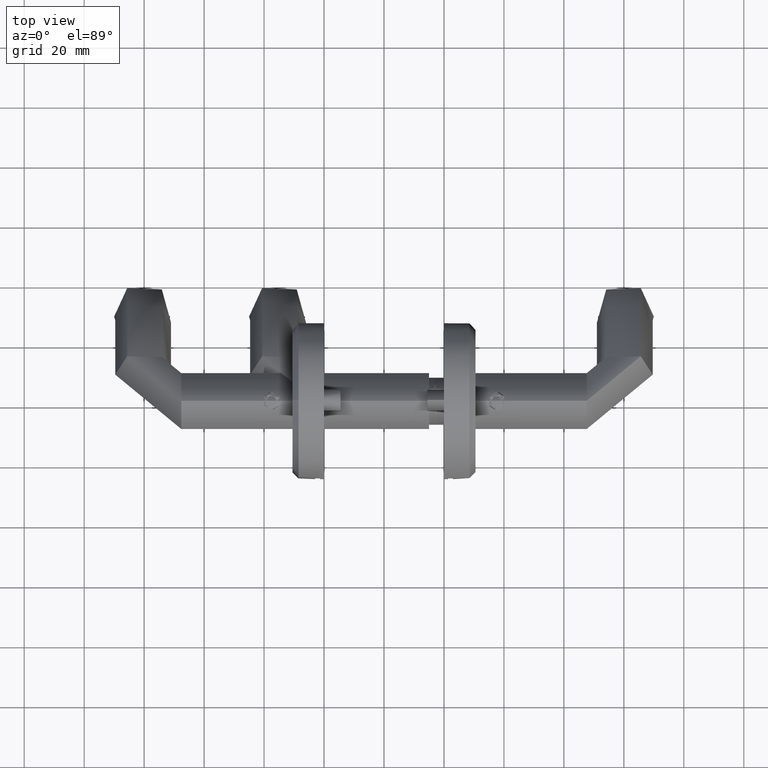
[diagram: clean part render]
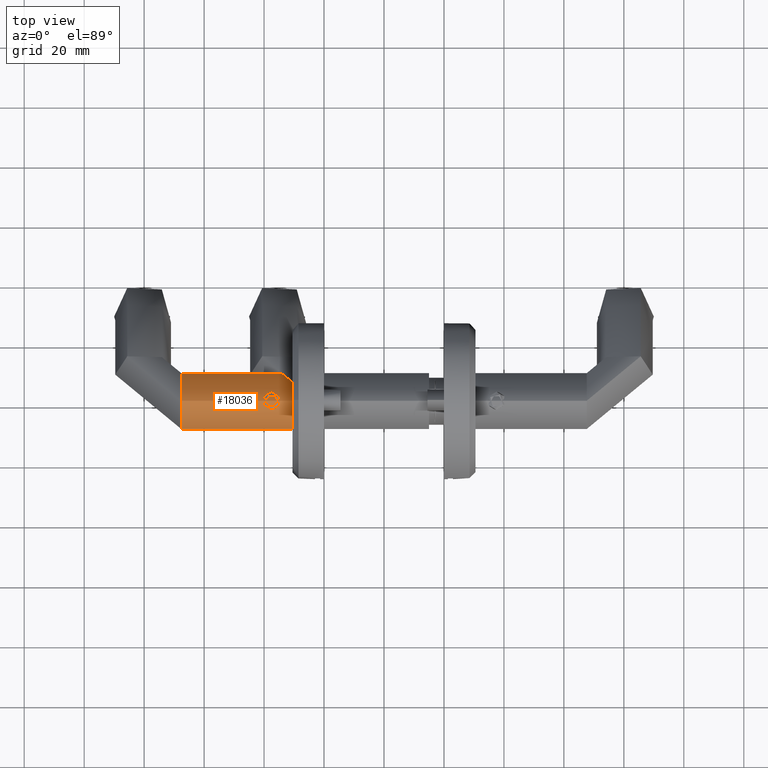
[diagram: same view with one face highlighted and labeled with its STEP entity id]
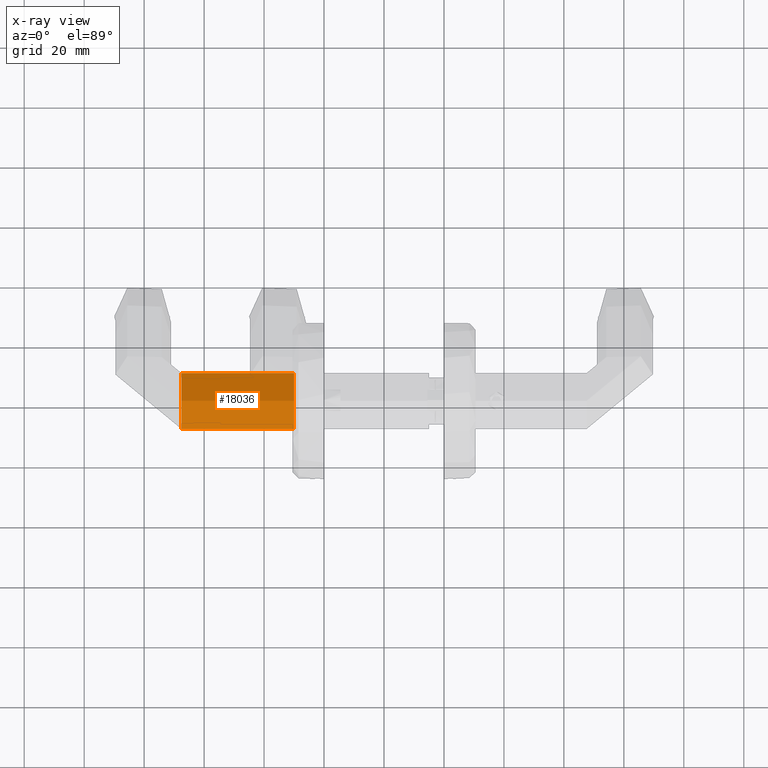
[diagram: x-ray of the same camera — body ghosted, the highlighted face saturated]
A machine part, top view. The second image highlights one B-rep face of the part: STEP entity #18036.
The next image is the same camera in x-ray: the body ghosted, the highlighted face saturated — about 0% of this face is hidden behind the body in this view.
In plain terms, the highlighted cylindrical surface (bore or boss wall) has radius 9.8 mm, axis along (1, -0, 0).
Its self-contained STEP definition (entity closure, byte-faithful):
#192 = CIRCLE ( 'NONE', #34407, 9.799999999999998900 ) ;
#372 = CIRCLE ( 'NONE', #3111, 9.799999999999998900 ) ;
#389 = CARTESIAN_POINT ( 'NONE',  ( -9.799999999999997200, -1.734723475976809100E-015, 37.62000000000002600 ) ) ;
#619 = CARTESIAN_POINT ( 'NONE',  ( -0.08299369442343772200, -1.284755754752694000, 5.013437405875524900 ) ) ;
#1814 = CARTESIAN_POINT ( 'NONE',  ( -0.3906389789736899300, 2.740375265106190100, 6.605224161148243000 ) ) ;
#2056 = CARTESIAN_POINT ( 'NONE',  ( -0.01635928692315415100, 0.5660162519090695700, 4.784810345631155900 ) ) ;
#2177 = CARTESIAN_POINT ( 'NONE',  ( -0.3496586795409333300, 2.595515547792905500, 8.728946815938055400 ) ) ;
#3012 = CARTESIAN_POINT ( 'NONE',  ( -6.897812140399388900E-005, -0.3805590716566443800, 4.731358774623282100 ) ) ;
#3111 = AXIS2_PLACEMENT_3D ( 'NONE', #389, #31972, #3270 ) ;
#3270 = DIRECTION ( 'NONE',  ( 1.000000000000000000, 0.0000000000000000000, 0.0000000000000000000 ) ) ;
#3751 = CARTESIAN_POINT ( 'NONE',  ( -0.4340130416390243800, -2.884161104360430700, 7.318411786598892000 ) ) ;
#3797 = FACE_BOUND ( 'NONE', #12312, .T. ) ;
#3880 = CARTESIAN_POINT ( 'NONE',  ( -0.2716078295963974500, -2.307259130480166400, 9.204518789570679300 ) ) ;
#4706 = ORIENTED_EDGE ( 'NONE', *, *, #8936, .F. ) ;
#4713 = CARTESIAN_POINT ( 'NONE',  ( -0.09556908775646376400, 1.365291422917502400, 5.059892389442357100 ) ) ;
#4840 = CARTESIAN_POINT ( 'NONE',  ( -0.4182749411672359000, 2.832531539183526600, 6.956191829310238700 ) ) ;
#4957 = CARTESIAN_POINT ( 'NONE',  ( -0.1326810078832695000, 1.607153852205561100, 5.199204663073095000 ) ) ;
#5080 = CARTESIAN_POINT ( 'NONE',  ( -0.02720517742662341800, 0.7534884234967550400, 4.820716758208251700 ) ) ;
#5206 = CARTESIAN_POINT ( 'NONE',  ( -0.005687839129652409600, 0.3820111784198392800, 10.25051546661125500 ) ) ;
#5606 = FACE_OUTER_BOUND ( 'NONE', #11726, .T. ) ;
#6390 = VERTEX_POINT ( 'NONE', #20257 ) ;
#6398 = CARTESIAN_POINT ( 'NONE',  ( -0.4354606581764589000, -2.888841102902963700, 7.410828847097634200 ) ) ;
#6604 = DIRECTION ( 'NONE',  ( -1.000000000000000000, 0.0000000000000000000, 0.0000000000000000000 ) ) ;
#6766 = CARTESIAN_POINT ( 'NONE',  ( -0.3288534424539765700, -2.521980209031587300, 6.101314800312283500 ) ) ;
#6891 = CARTESIAN_POINT ( 'NONE',  ( -0.06310637153082547500, -1.110361413178788700, 4.943845459730400900 ) ) ;
#7003 = EDGE_LOOP ( 'NONE', ( #28247 ) ) ;
#7712 = CARTESIAN_POINT ( 'NONE',  ( -0.3700320209831468000, 2.667527678341279800, 6.437236899734778600 ) ) ;
#7836 = FACE_OUTER_BOUND ( 'NONE', #7003, .T. ) ;
#7839 = CARTESIAN_POINT ( 'NONE',  ( -0.4354537862329047600, 2.888818826240517000, 7.409396572554148200 ) ) ;
#7971 = CARTESIAN_POINT ( 'NONE',  ( -0.3252775338928902100, 2.506290682336496500, 8.888870862113197500 ) ) ;
#8936 = EDGE_CURVE ( 'NONE', #6390, #6390, #372, .T. ) ;
#9281 = CARTESIAN_POINT ( 'NONE',  ( -0.3288964126751554600, -2.522058451194332000, 8.897482933850984200 ) ) ;
#9333 = CARTESIAN_POINT ( 'NONE',  ( 0.0000000000000000000, -3.851859888774471700E-031, 1.811914891679511500E-030 ) ) ;
#9401 = CARTESIAN_POINT ( 'NONE',  ( -0.3701412483092820200, -2.667913777310275200, 6.438127643400209300 ) ) ;
#9516 = CARTESIAN_POINT ( 'NONE',  ( -0.4295886053681828900, -2.870001744910787100, 7.864231248662980200 ) ) ;
#10452 = CARTESIAN_POINT ( 'NONE',  ( 0.0000000000000000000, 7.266389659639852600E-016, 10.26885880047777300 ) ) ;
#10580 = CARTESIAN_POINT ( 'NONE',  ( -0.1196767919207034500, 1.528931158230135000, 5.149005723561717000 ) ) ;
#10984 = DIRECTION ( 'NONE',  ( 1.972152263052526900E-031, 3.889170968374258800E-034, 1.000000000000000000 ) ) ;
#11726 = EDGE_LOOP ( 'NONE', ( #4706 ) ) ;
#12029 = CARTESIAN_POINT ( 'NONE',  ( -0.3907851512369348000, -2.740880561449619400, 6.606534064944172600 ) ) ;
#12151 = CARTESIAN_POINT ( 'NONE',  ( -0.3902322306081675900, -2.738962581778774800, 8.398396888467486200 ) ) ;
#12162 = AXIS2_PLACEMENT_3D ( 'NONE', #29409, #20775, #6604 ) ;
#12284 = CARTESIAN_POINT ( 'NONE',  ( -0.02300272790867947900, -0.7581509683962325300, 10.19646775247131700 ) ) ;
#12312 = EDGE_LOOP ( 'NONE', ( #24211 ) ) ;
#12416 = CARTESIAN_POINT ( 'NONE',  ( -0.4070522529736622100, -2.795362649473159200, 8.221942249555905100 ) ) ;
#12540 = CARTESIAN_POINT ( 'NONE',  ( -0.1590607073925400000, -1.765585746114683300, 5.301093781196164500 ) ) ;
#13362 = CARTESIAN_POINT ( 'NONE',  ( -0.4340157285619795600, 2.884169698778210400, 7.318730521170619100 ) ) ;
#13478 = CARTESIAN_POINT ( 'NONE',  ( -0.1328079027327934400, 1.607916961330550600, 9.800305463808472300 ) ) ;
#13539 = VERTEX_POINT ( 'NONE', #9333 ) ;
#13729 = CARTESIAN_POINT ( 'NONE',  ( -0.4354170493484896300, 2.888699736959077200, 7.863310219945206300 ) ) ;
#14997 = EDGE_CURVE ( 'NONE', #36379, #36379, #17416, .T. ) ;
#15059 = CARTESIAN_POINT ( 'NONE',  ( -0.1323713766238007700, -1.605290254277161000, 9.801990246998032700 ) ) ;
#15189 = CARTESIAN_POINT ( 'NONE',  ( -0.2154620635836917400, -2.043681126153644700, 5.543074919613039800 ) ) ;
#15434 = CARTESIAN_POINT ( 'NONE',  ( -0.08287199686703046500, -1.283955025719124800, 9.986999347365598500 ) ) ;
#16131 = CARTESIAN_POINT ( 'NONE',  ( -0.2719463490837928900, 2.308787249372621800, 5.797056132452504500 ) ) ;
#16384 = CARTESIAN_POINT ( 'NONE',  ( -0.1588885663860762900, 1.764720323459317200, 9.699615155712530500 ) ) ;
#16508 = CARTESIAN_POINT ( 'NONE',  ( -0.2719238998996207400, 2.295130633497247900, 9.191259280137327200 ) ) ;
#16630 = CARTESIAN_POINT ( 'NONE',  ( -0.3288181050020606000, 2.521832504811458300, 6.101262376907850000 ) ) ;
#17416 = B_SPLINE_CURVE_WITH_KNOTS ( 'NONE', 3,
 ( #10452, #22363, #5206, #30886, #25236, #33262, #33383, #22126, #19379, #13478, #16384, #36378, #36260, #33630, #16508, #36629, #7971, #2177, #19516, #30517, #13729, #27636, #7839, #13362, #19138, #30764, #33753, #4840, #24859, #1814, #7712, #16630, #16131, #27755, #28014, #36139, #4957, #10580, #27872, #4713, #22253, #24739, #30637, #19256, #5080, #2056, #25106, #26183, #25933, #3012, #26678, #6891, #619, #32456, #24040, #12540, #35315, #15189, #29455, #6766, #9401, #12029, #21187, #29562, #26425, #20698, #23554, #3751, #6398, #34948, #32197, #9516, #18191, #12416, #12151, #26804, #9281, #3880, #23913, #29681, #20827, #15059, #35068, #15434, #29331, #12284, #17934, #35433 ),
 .UNSPECIFIED., .T., .F.,
 ( 4, 3, 3, 3, 3, 3, 3, 3, 3, 3, 3, 3, 3, 3, 3, 3, 3, 3, 3, 3, 3, 3, 3, 3, 3, 3, 3, 3, 3, 4 ),
 ( 0.0000000000000000000, 0.03448275862068965500, 0.06896551724137930900, 0.1034482758620689600, 0.1379310344827586200, 0.1724137931034482900, 0.2068965517241379300, 0.2413793103448276000, 0.2758620689655172400, 0.3103448275862069100, 0.3448275862068965700, 0.3793103448275861900, 0.4137931034482758600, 0.4482758620689655200, 0.4827586206896551900, 0.5172413793103448600, 0.5517241379310344800, 0.5862068965517240900, 0.6206896551724138100, 0.6551724137931034300, 0.6896551724137931500, 0.7241379310344827600, 0.7586206896551723800, 0.7931034482758621000, 0.8275862068965517100, 0.8620689655172413300, 0.8965517241379310500, 0.9310344827586206600, 0.9655172413793103900, 1.000000000000000000 ),
 .UNSPECIFIED. ) ;
#17934 = CARTESIAN_POINT ( 'NONE',  ( 4.649162708633346500E-017, -0.3796331878165531400, 10.26885815542220800 ) ) ;
#18036 = ADVANCED_FACE ( 'NONE', ( #3797, #5606, #7836 ), #21296, .T. ) ;
#18191 = CARTESIAN_POINT ( 'NONE',  ( -0.4183204291709225500, -2.832682197191973100, 8.043086749109441800 ) ) ;
#19138 = CARTESIAN_POINT ( 'NONE',  ( -0.4311381815473910300, 2.874791857985704800, 7.227702611852203400 ) ) ;
#19256 = CARTESIAN_POINT ( 'NONE',  ( -0.04295689141208925600, 0.9332789638739097400, 4.873354249472422200 ) ) ;
#19379 = CARTESIAN_POINT ( 'NONE',  ( -0.1067272390795106100, 1.451113599201783800, 9.900995771904415900 ) ) ;
#19516 = CARTESIAN_POINT ( 'NONE',  ( -0.3701249467926506800, 2.667856158209755100, 8.562005341469479400 ) ) ;
#20257 = CARTESIAN_POINT ( 'NONE',  ( 1.734723475976807100E-015, -1.734723475976809100E-015, 37.62000000000002600 ) ) ;
#20698 = CARTESIAN_POINT ( 'NONE',  ( -0.4282354775607659100, -2.865331868395486900, 7.136114027252428800 ) ) ;
#20775 = DIRECTION ( 'NONE',  ( -4.611173514026615700E-017, 4.611173514026595900E-017, -1.000000000000000000 ) ) ;
#20827 = CARTESIAN_POINT ( 'NONE',  ( -0.1583580359761586900, -1.761791155663314300, 9.701725541107586900 ) ) ;
#21187 = CARTESIAN_POINT ( 'NONE',  ( -0.4071927410788393500, -2.795831505877547100, 6.779938730034812600 ) ) ;
#21296 = CYLINDRICAL_SURFACE ( 'NONE', #12162, 9.800000000000000700 ) ;
#22126 = CARTESIAN_POINT ( 'NONE',  ( -0.08304751355790350500, 1.285183879548748200, 9.986366251772009800 ) ) ;
#22253 = CARTESIAN_POINT ( 'NONE',  ( -0.08378542986458774300, 1.281533704978528500, 5.016836817288125700 ) ) ;
#22363 = CARTESIAN_POINT ( 'NONE',  ( -2.342616648408522500E-017, 0.1912892883735808900, 10.26885912550789100 ) ) ;
#23554 = CARTESIAN_POINT ( 'NONE',  ( -0.4311242595998951400, -2.874746486377958800, 7.227262906925660400 ) ) ;
#23913 = CARTESIAN_POINT ( 'NONE',  ( -0.2150473454605519900, -2.041735195914786700, 9.458790259917599000 ) ) ;
#24040 = CARTESIAN_POINT ( 'NONE',  ( -0.1330893721792018000, -1.609608310653654500, 5.200781488677988000 ) ) ;
#24211 = ORIENTED_EDGE ( 'NONE', *, *, #14997, .T. ) ;
#24739 = CARTESIAN_POINT ( 'NONE',  ( -0.07276660665859899200, 1.195263767240114700, 4.977640773624890400 ) ) ;
#24859 = CARTESIAN_POINT ( 'NONE',  ( -0.4070641552458614300, 2.795399909843192500, 6.778494892281071500 ) ) ;
#25106 = CARTESIAN_POINT ( 'NONE',  ( -0.005513396419684886100, 0.3785440803213841500, 4.748903933054061000 ) ) ;
#25236 = CARTESIAN_POINT ( 'NONE',  ( -0.02719061374001651200, 0.7527814721678910400, 10.17933456957791400 ) ) ;
#25933 = CARTESIAN_POINT ( 'NONE',  ( -1.617368131784369100E-007, -0.001780461037007060900, 4.731141725421244000 ) ) ;
#26183 = CARTESIAN_POINT ( 'NONE',  ( 3.424645548222928900E-005, 0.1876088442728116300, 4.731033200820226300 ) ) ;
#26425 = CARTESIAN_POINT ( 'NONE',  ( -0.4239977293205048900, -2.851483284772654300, 7.047203057585905500 ) ) ;
#26678 = CARTESIAN_POINT ( 'NONE',  ( -0.02333172574560098100, -0.7615727300309781400, 4.804661567440153800 ) ) ;
#26804 = CARTESIAN_POINT ( 'NONE',  ( -0.3697869579638302100, -2.666661204917293700, 8.564758903595318900 ) ) ;
#27071 = EDGE_CURVE ( 'NONE', #13539, #13539, #192, .T. ) ;
#27636 = CARTESIAN_POINT ( 'NONE',  ( -0.4354464388560217400, 2.888795008384228900, 7.500179302032360200 ) ) ;
#27755 = CARTESIAN_POINT ( 'NONE',  ( -0.2151425684714970700, 2.042182170442404600, 5.541637852098276100 ) ) ;
#27872 = CARTESIAN_POINT ( 'NONE',  ( -0.1073527456483397800, 1.449049140856476500, 5.102947961596587600 ) ) ;
#28014 = CARTESIAN_POINT ( 'NONE',  ( -0.1867406781653491700, 1.908879630977296000, 5.413928711921161400 ) ) ;
#28247 = ORIENTED_EDGE ( 'NONE', *, *, #27071, .T. ) ;
#29331 = CARTESIAN_POINT ( 'NONE',  ( -0.06291557388091347000, -1.108687006611494000, 10.05682214906750500 ) ) ;
#29409 = CARTESIAN_POINT ( 'NONE',  ( -9.799999999999997200, -1.734723475976809100E-015, 37.62000000000002600 ) ) ;
#29455 = CARTESIAN_POINT ( 'NONE',  ( -0.2725508792745408000, -2.311418549928672100, 5.799938119506285800 ) ) ;
#29562 = CARTESIAN_POINT ( 'NONE',  ( -0.4183960665732830400, -2.832932691807618800, 6.958114948402207600 ) ) ;
#29681 = CARTESIAN_POINT ( 'NONE',  ( -0.1867671033926292500, -1.908973228632097300, 9.585925995091059800 ) ) ;
#30517 = CARTESIAN_POINT ( 'NONE',  ( -0.4110574812960853800, 2.812537379043453800, 8.228122392532329200 ) ) ;
#30637 = CARTESIAN_POINT ( 'NONE',  ( -0.06283003490976241100, 1.107935499451379700, 4.942878598907400400 ) ) ;
#30764 = CARTESIAN_POINT ( 'NONE',  ( -0.4282606345328024400, 2.865414017193199200, 7.136674702533787800 ) ) ;
#30886 = CARTESIAN_POINT ( 'NONE',  ( -0.01643922643483446100, 0.5673963252938651900, 10.21492501809458500 ) ) ;
#31172 = DIRECTION ( 'NONE',  ( 1.000000000000000000, 0.0000000000000000000, 1.848892746611746600E-031 ) ) ;
#31972 = DIRECTION ( 'NONE',  ( 1.972152263052526900E-031, 3.889170968374258800E-034, 1.000000000000000000 ) ) ;
#32197 = CARTESIAN_POINT ( 'NONE',  ( -0.4354174939026659300, -2.888701178042762100, 7.683482782521309700 ) ) ;
#32456 = CARTESIAN_POINT ( 'NONE',  ( -0.1071180369658636400, -1.453630875192625700, 5.100469196159810500 ) ) ;
#33262 = CARTESIAN_POINT ( 'NONE',  ( -0.04322795052184890500, 0.9360888860290618200, 10.12572333448655300 ) ) ;
#33383 = CARTESIAN_POINT ( 'NONE',  ( -0.06313773203987620200, 1.110636382788905000, 10.05604479312928100 ) ) ;
#33630 = CARTESIAN_POINT ( 'NONE',  ( -0.2438665581232621600, 2.176849510989165000, 9.329083526173979700 ) ) ;
#33753 = CARTESIAN_POINT ( 'NONE',  ( -0.4238803341279230900, 2.851097353853693200, 7.045040297824822800 ) ) ;
#33911 = CARTESIAN_POINT ( 'NONE',  ( -9.799999999999998900, -3.851859888774471700E-031, 0.0000000000000000000 ) ) ;
#34407 = AXIS2_PLACEMENT_3D ( 'NONE', #33911, #10984, #31172 ) ;
#34504 = CARTESIAN_POINT ( 'NONE',  ( 0.0000000000000000000, 7.266389659639852600E-016, 10.26885880047777300 ) ) ;
#34948 = CARTESIAN_POINT ( 'NONE',  ( -0.4354462700851946000, -2.888794461282896600, 7.501713492238860000 ) ) ;
#35068 = CARTESIAN_POINT ( 'NONE',  ( -0.1063847172714428400, -1.448789352891007600, 9.902254952888478500 ) ) ;
#35315 = CARTESIAN_POINT ( 'NONE',  ( -0.1869176557382671900, -1.909812414266131000, 5.414643319666416800 ) ) ;
#35433 = CARTESIAN_POINT ( 'NONE',  ( 0.0000000000000000000, 7.266389659639852600E-016, 10.26885880047777300 ) ) ;
#36139 = CARTESIAN_POINT ( 'NONE',  ( -0.1586894398084016100, 1.763599240156413100, 5.299602542095850100 ) ) ;
#36260 = CARTESIAN_POINT ( 'NONE',  ( -0.2156006298347831200, 2.044330871746700100, 9.456301505415476400 ) ) ;
#36378 = CARTESIAN_POINT ( 'NONE',  ( -0.1873347015463040500, 1.911812232504235300, 9.583519484656974900 ) ) ;
#36379 = VERTEX_POINT ( 'NONE', #34504 ) ;
#36629 = CARTESIAN_POINT ( 'NONE',  ( -0.2986007168962554500, 2.400710657916872200, 9.040065071125262400 ) ) ;